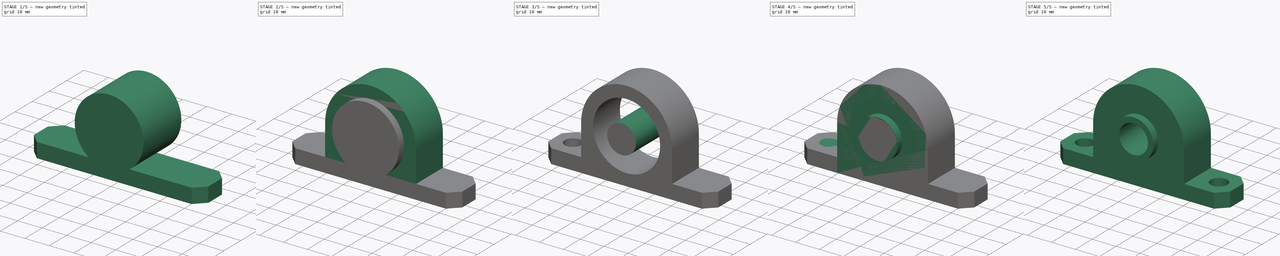
[diagram: build sequence overview — one tinted view per stage of 5, left to right]
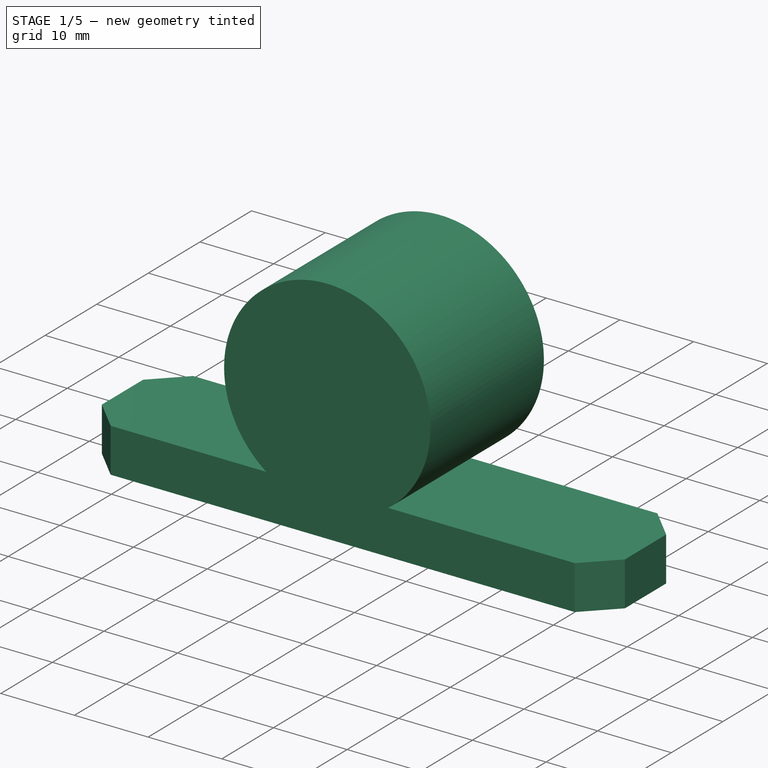
[diagram: stage 1 of 5 — iso view after this stage's code; geometry added in this stage tinted green]
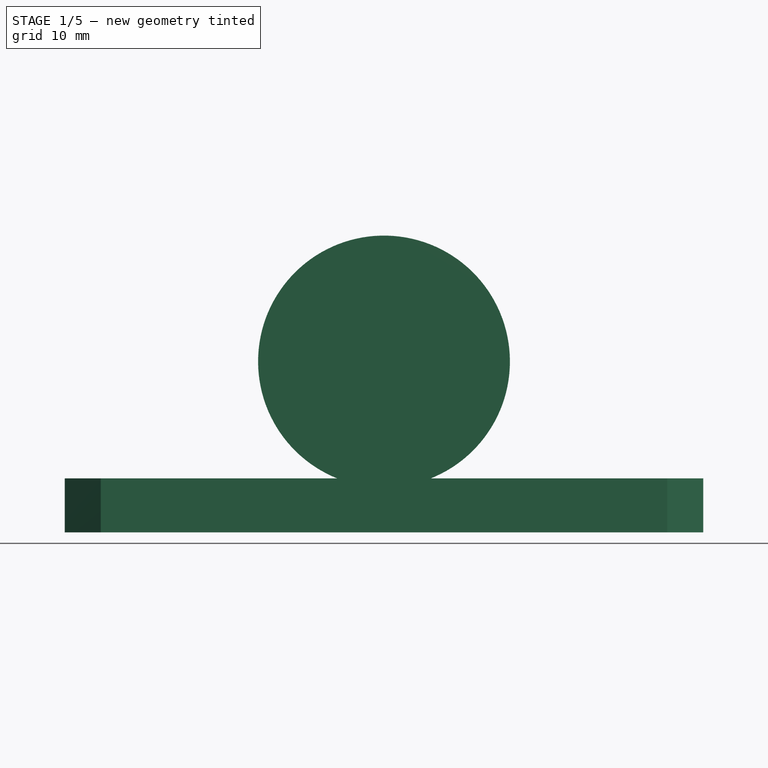
[diagram: stage 1 of 5 — front view after this stage's code; geometry added in this stage tinted green]
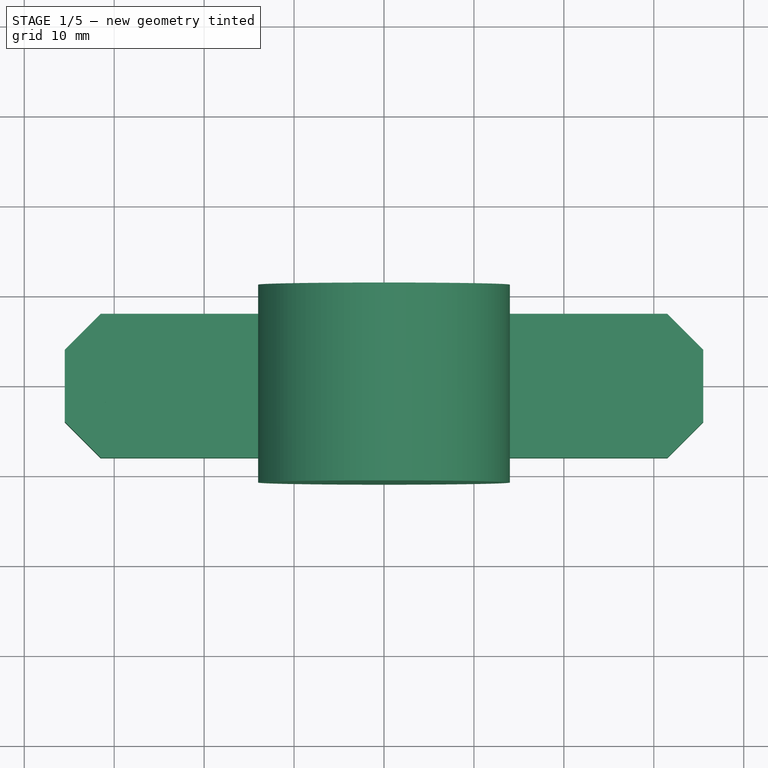
[diagram: stage 1 of 5 — top view after this stage's code; geometry added in this stage tinted green]
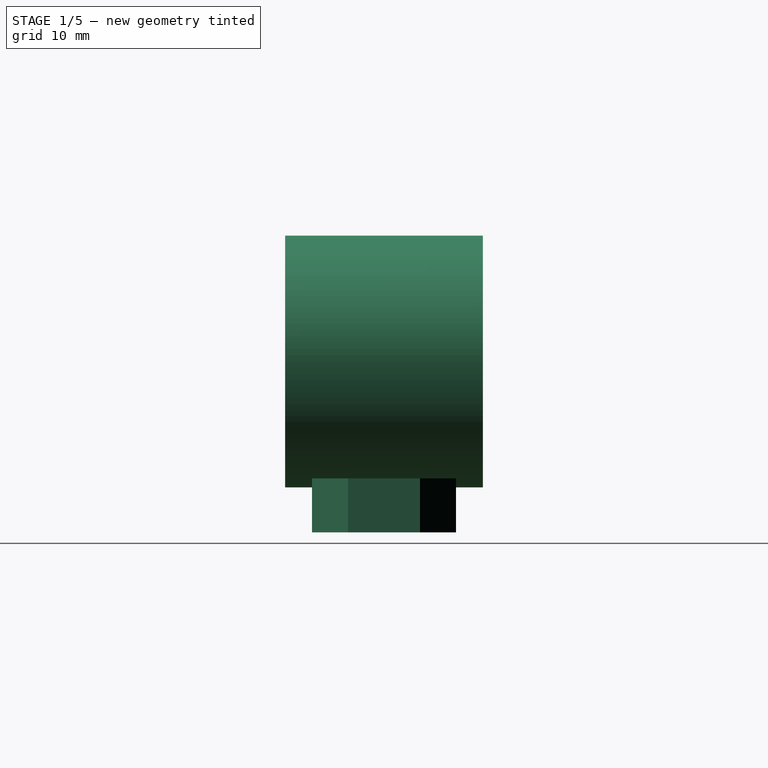
[diagram: stage 1 of 5 — right view after this stage's code; geometry added in this stage tinted green]
FCSTD DOCUMENT  (FreeCAD 1.0R1.0rc2)
Label: FlangeBearing_12mm_KP001
License: All rights reserved
LicenseURL: http://en.wikipedia.org/wiki/All_rights_reserved
objects: Part::Cylinder×10, Part::MultiFuse×6, Sketcher::SketchObject×2, PartDesign::Pad×2, PartDesign::Body×2, Part::Box×2, Part::Cut×2
note: 32 computed .brp shape members not serialized (recipe doc carries the construction recipe); baked Part::Feature solids carry a one-line shape summary decoded from their .brp

FEATURE [Part::Cylinder] Cylinder005
  Angle = 360
  AttacherType = Attacher::AttachEngine3D
  FirstAngle = 0
  Height = 6
  Placement = pos=(-28,0,0) rot=(0,0,1;0rad)
  Radius = 3.5
  SecondAngle = 0
FEATURE [Part::Cylinder] Cylinder006
  Angle = 360
  AttacherType = Attacher::AttachEngine3D
  FirstAngle = 0
  Height = 6
  Placement = pos=(28,0,0) rot=(0,0,1;0rad)
  Radius = 3.5
  SecondAngle = 0
FEATURE [Part::Cylinder] Cylinder008
  Angle = 360
  AttacherType = Attacher::AttachEngine3D
  FirstAngle = 0
  Height = 22
  Placement = pos=(0,11,19) rot=(1,0,0;1.5708rad)
  Radius = 14
  SecondAngle = 0
FEATURE [Sketcher::SketchObject] Sketch001
  ArcFitTolerance = 1e-06
  AttachmentSupport = -> [XY_Plane001]
  FullyConstrained = true
  MakeInternals = false
  MapMode = 5
  sketch-geometry (8):
    g0: LineSegment StartX=-31.5 StartY=-8 StartZ=0 EndX=31.5 EndY=-8 EndZ=0
    g1: LineSegment StartX=31.5 StartY=-8 StartZ=0 EndX=35.5 EndY=-4 EndZ=0
    g2: LineSegment StartX=35.5 StartY=-4 StartZ=0 EndX=35.5 EndY=4 EndZ=0
    g3: LineSegment StartX=35.5 StartY=4 StartZ=0 EndX=31.5 EndY=8 EndZ=0
    g4: LineSegment StartX=31.5 StartY=8 StartZ=0 EndX=-31.5 EndY=8 EndZ=0
    g5: LineSegment StartX=-31.5 StartY=8 StartZ=0 EndX=-35.5 EndY=4 EndZ=0
    g6: LineSegment StartX=-35.5 StartY=4 StartZ=0 EndX=-35.5 EndY=-4 EndZ=0
    g7: LineSegment StartX=-35.5 StartY=-4 StartZ=0 EndX=-31.5 EndY=-8 EndZ=0
  constraints (24):
    c: Horizontal(g0)
    c: Coincident(g0,g1)
    c: Coincident(g1,g2)
    c: Vertical(g2)
    c: Coincident(g2,g3)
    c: Coincident(g3,g4)
    c: Horizontal(g4)
    c: Coincident(g4,g5)
    c: Coincident(g5,g6)
    c: Vertical(g6)
    c: Coincident(g6,g7)
    c: Coincident(g7,g0)
    c: Equal(g0,g4)
    c: Equal(g6,g2)
    c: Equal(g5,g1)
    c: Equal(g7,g3)
    c: DistanceY(g2,g2) = 8
    c: Angle(g6,g5) = 2.35619
    c: Angle(g7,g6) = 2.35619
    c: DistanceX(g5,g2) = 71
    c: DistanceY(g0,g4) = 16
    c: DistanceY(g-1,g4) = 8
    c: DistanceX(g5,g-1) = 35.5
    c: DistanceX(g0,g4) = 0
FEATURE [PartDesign::Pad] Pad001
  Direction = (0,0,1)
  Length = 6
  Length2 = 10
  Profile = -> Sketch001
  ReferenceAxis = -> Sketch001 [N_Axis]
  Suppressed = false
  Type = 0
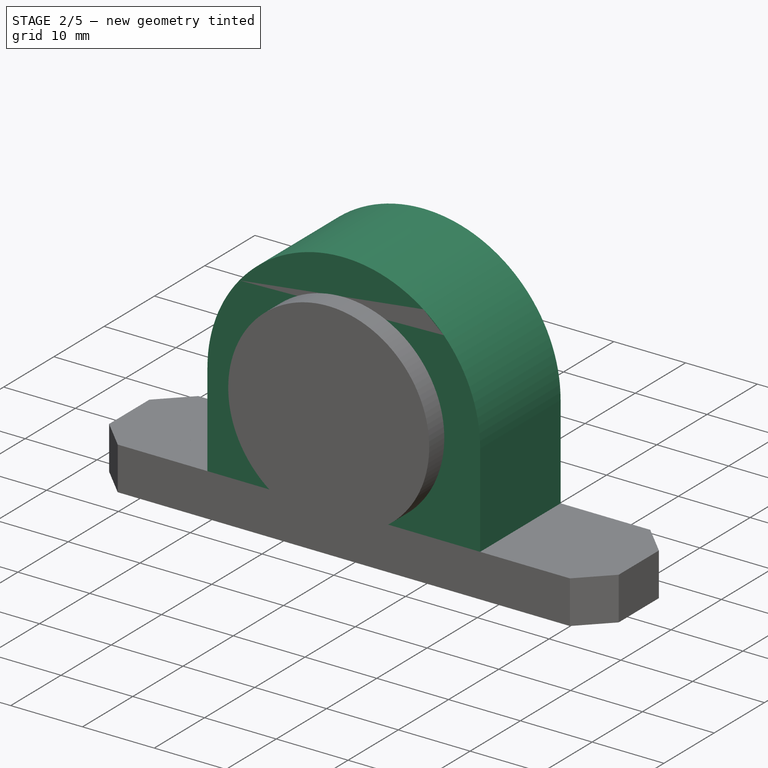
[diagram: stage 2 of 5 — iso view after this stage's code; geometry added in this stage tinted green]
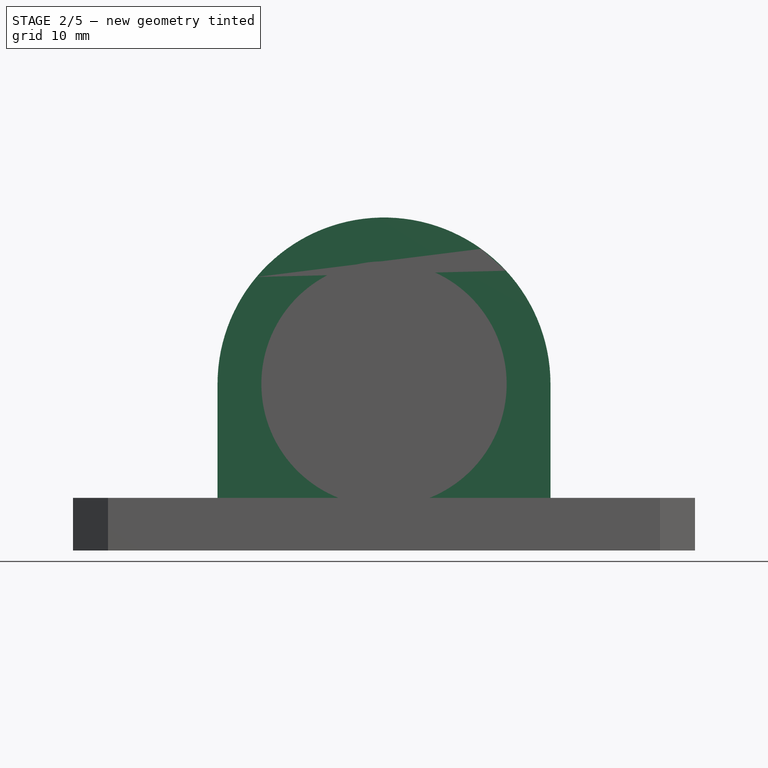
[diagram: stage 2 of 5 — front view after this stage's code; geometry added in this stage tinted green]
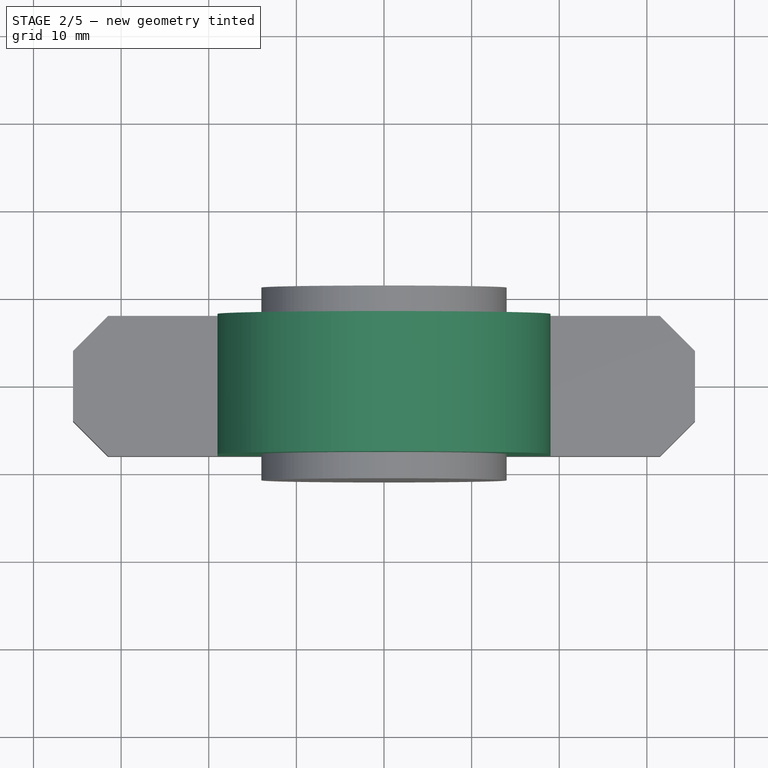
[diagram: stage 2 of 5 — top view after this stage's code; geometry added in this stage tinted green]
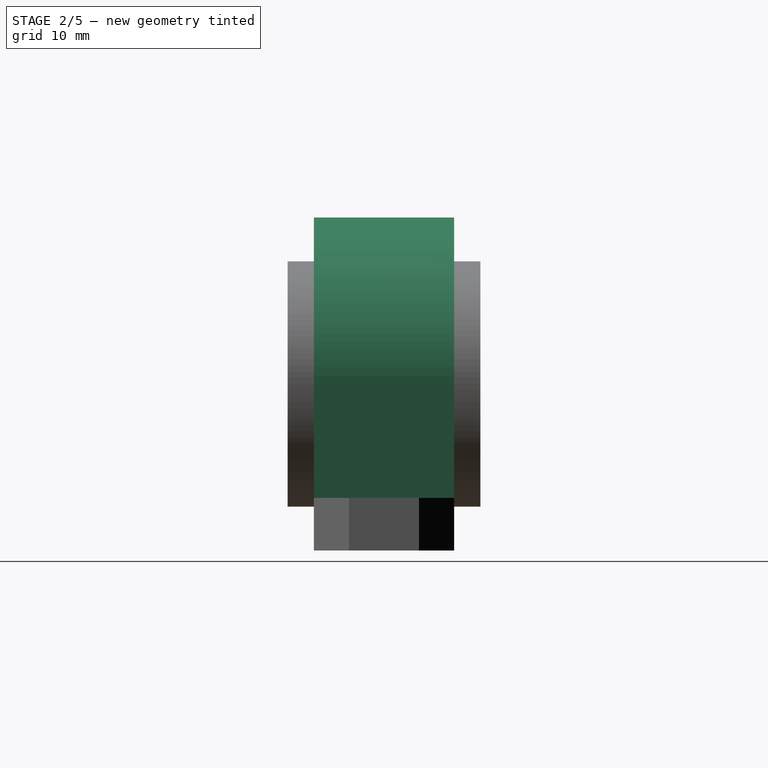
[diagram: stage 2 of 5 — right view after this stage's code; geometry added in this stage tinted green]
FEATURE [Part::Box] Box001  label="Cube001"
  AttacherType = Attacher::AttachEngine3D
  Height = 19
  Length = 38
  Placement = pos=(-19,-8,0) rot=(0,0,1;0rad)
  Width = 16
FEATURE [Part::Cylinder] Cylinder007
  Angle = 360
  AttacherType = Attacher::AttachEngine3D
  FirstAngle = 0
  Height = 16
  Placement = pos=(0,8,19) rot=(1,0,0;1.5708rad)
  Radius = 19
  SecondAngle = 0
FEATURE [Part::Cylinder] Cylinder009
  Angle = 360
  AttacherType = Attacher::AttachEngine3D
  FirstAngle = 0
  Height = 22
  Placement = pos=(0,11,19) rot=(1,0,0;1.5708rad)
  Radius = 8.25
  SecondAngle = 0
FEATURE [Part::MultiFuse] Fusion005
  Shapes = -> [Cylinder005,Cylinder006,Cylinder008]
FEATURE [PartDesign::Body] Body001
  AllowCompound = false
  Group = -> [Sketch001,Pad001]
  Origin = -> Origin001
  Tip = -> Pad001
FEATURE [Part::MultiFuse] Fusion003
  Shapes = -> [Cylinder007,Box001,Body001]
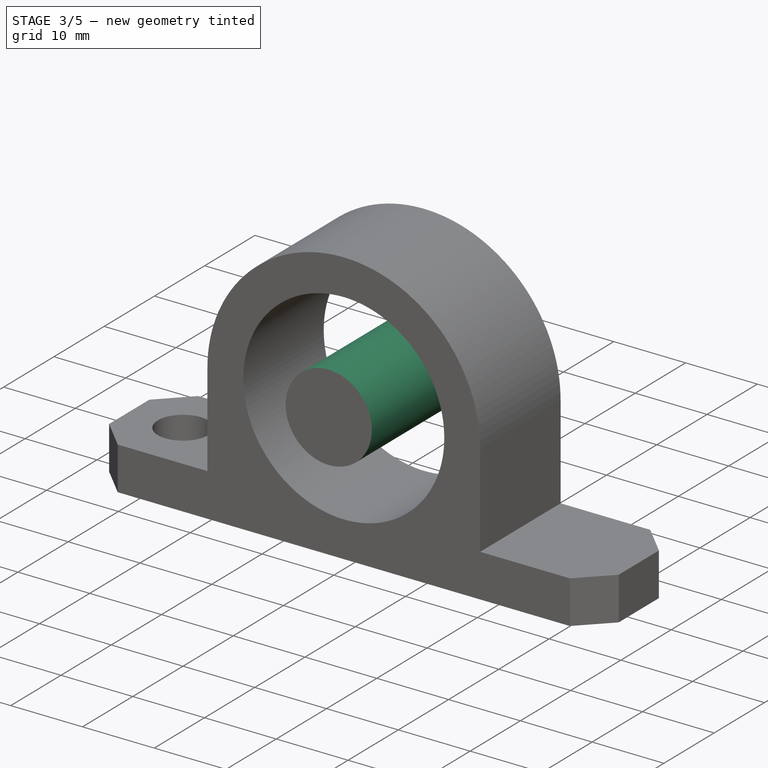
[diagram: stage 3 of 5 — iso view after this stage's code; geometry added in this stage tinted green]
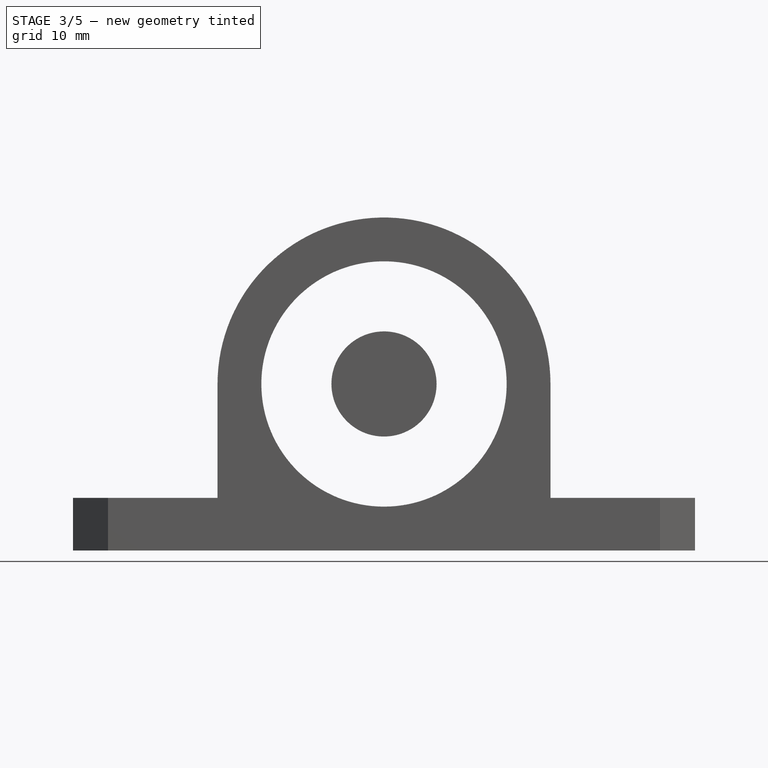
[diagram: stage 3 of 5 — front view after this stage's code; geometry added in this stage tinted green]
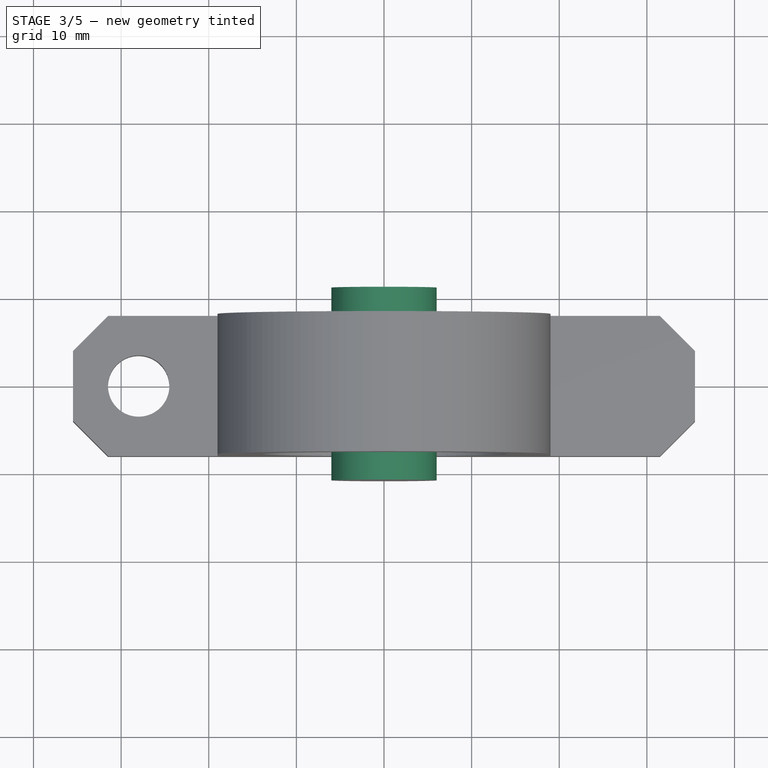
[diagram: stage 3 of 5 — top view after this stage's code; geometry added in this stage tinted green]
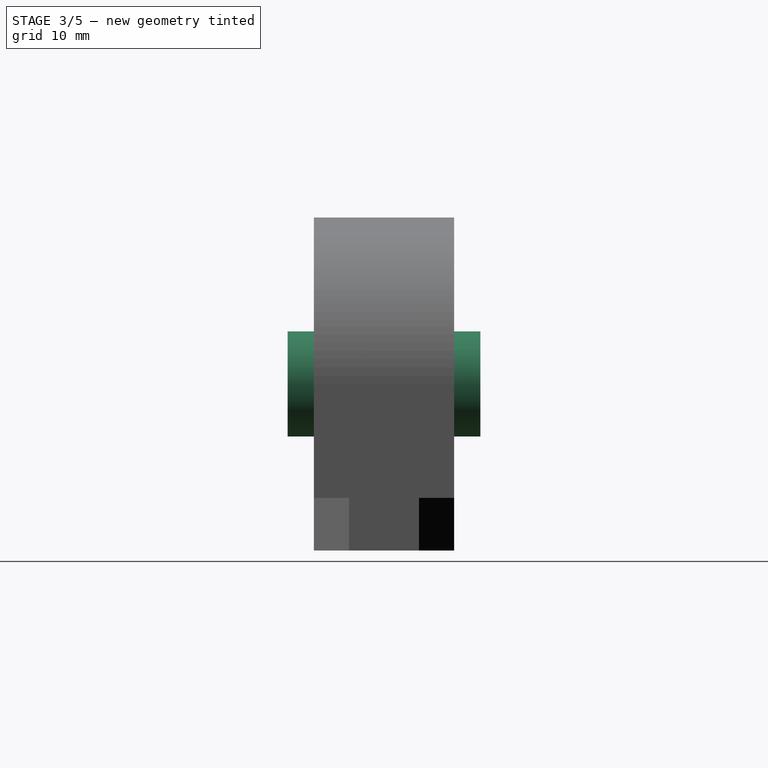
[diagram: stage 3 of 5 — right view after this stage's code; geometry added in this stage tinted green]
FEATURE [Part::Cylinder] Cylinder001
  Angle = 360
  AttacherType = Attacher::AttachEngine3D
  FirstAngle = 0
  Height = 6
  Placement = pos=(28,0,0) rot=(0,0,1;0rad)
  Radius = 3.5
  SecondAngle = 0
FEATURE [Part::Cylinder] Cylinder003
  Angle = 360
  AttacherType = Attacher::AttachEngine3D
  FirstAngle = 0
  Height = 22
  Placement = pos=(0,11,19) rot=(1,0,0;1.5708rad)
  Radius = 6
  SecondAngle = 0
FEATURE [Part::MultiFuse] Fusion004
  Shapes = -> [Cylinder009,Fusion003]
FEATURE [Part::Cut] Cut001  label="FlangeBlock"
  Base = -> Fusion004
  Tool = -> Fusion005
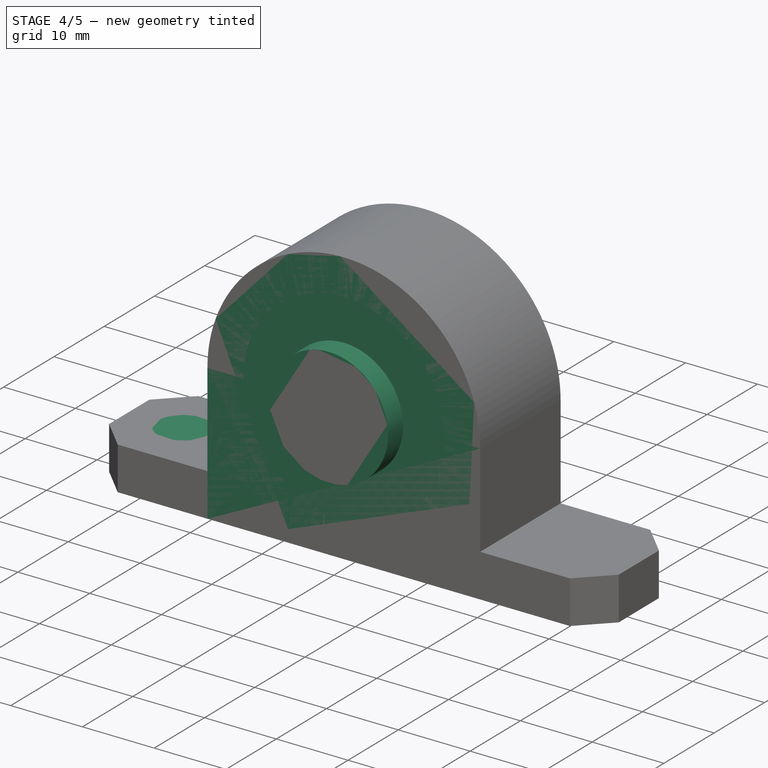
[diagram: stage 4 of 5 — iso view after this stage's code; geometry added in this stage tinted green]
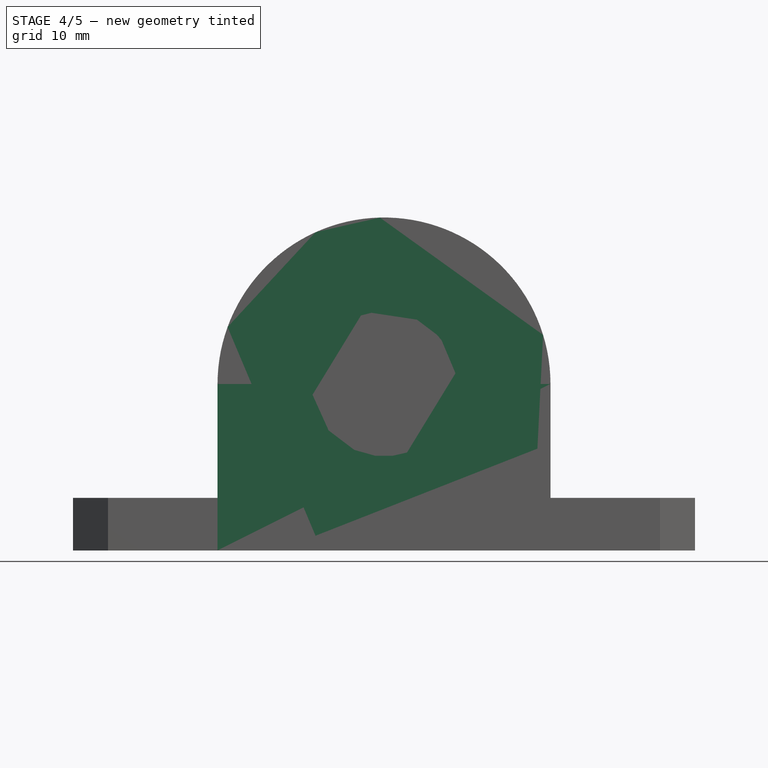
[diagram: stage 4 of 5 — front view after this stage's code; geometry added in this stage tinted green]
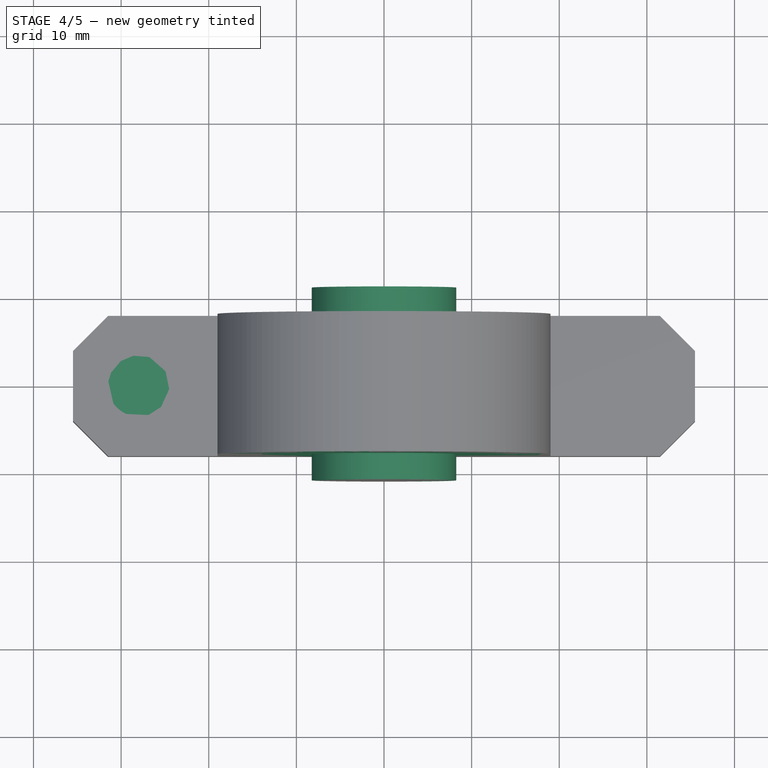
[diagram: stage 4 of 5 — top view after this stage's code; geometry added in this stage tinted green]
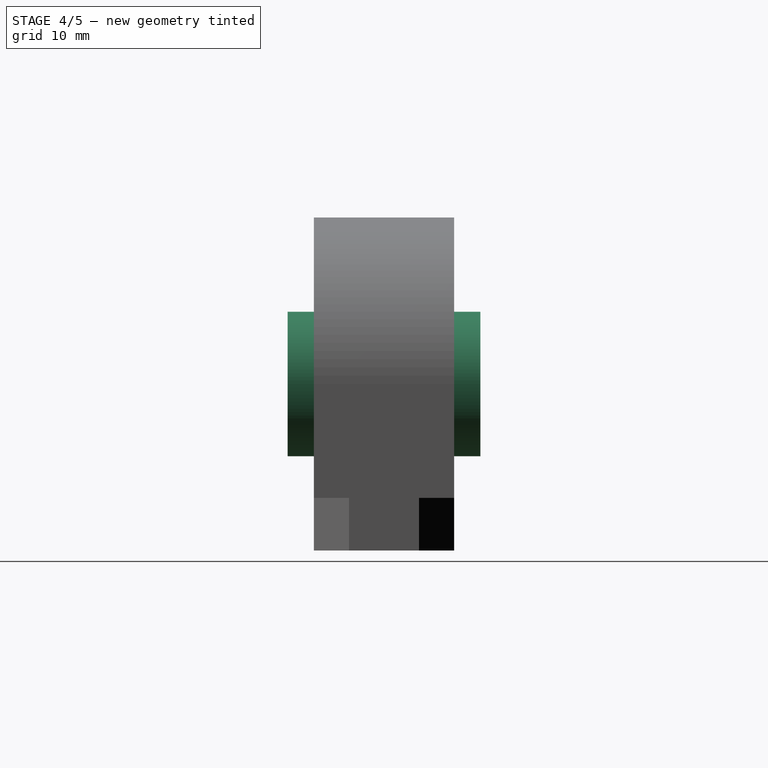
[diagram: stage 4 of 5 — right view after this stage's code; geometry added in this stage tinted green]
FEATURE [PartDesign::Body] Body
  AllowCompound = false
  Group = -> [Sketch,Pad]
  Origin = -> Origin
  Tip = -> Pad
FEATURE [Part::Cylinder] Cylinder
  Angle = 360
  AttacherType = Attacher::AttachEngine3D
  FirstAngle = 0
  Height = 6
  Placement = pos=(-28,0,0) rot=(0,0,1;0rad)
  Radius = 3.5
  SecondAngle = 0
FEATURE [Part::Cylinder] Cylinder002
  Angle = 360
  AttacherType = Attacher::AttachEngine3D
  FirstAngle = 0
  Height = 16
  Placement = pos=(0,8,19) rot=(1,0,0;1.5708rad)
  Radius = 19
  SecondAngle = 0
FEATURE [Part::Box] Box  label="Cube"
  AttacherType = Attacher::AttachEngine3D
  Height = 19
  Length = 38
  Placement = pos=(-19,-8,0) rot=(0,0,1;0rad)
  Width = 16
FEATURE [Part::Cylinder] Cylinder004
  Angle = 360
  AttacherType = Attacher::AttachEngine3D
  FirstAngle = 0
  Height = 22
  Placement = pos=(0,11,19) rot=(1,0,0;1.5708rad)
  Radius = 8.25
  SecondAngle = 0
FEATURE [Part::MultiFuse] Fusion002
  Shapes = -> [Cylinder,Cylinder001,Cylinder003]
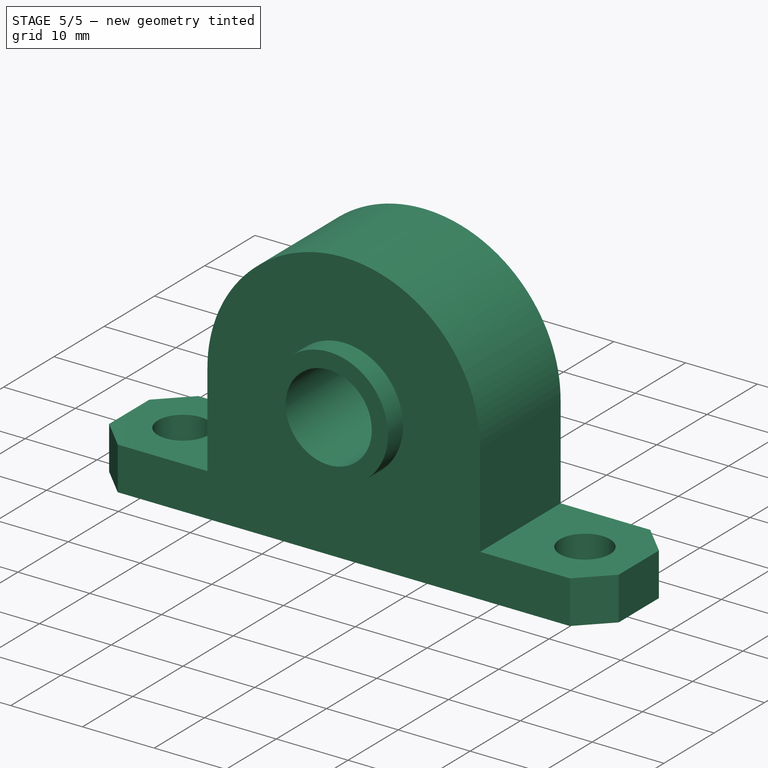
[diagram: stage 5 of 5 — iso view after this stage's code; geometry added in this stage tinted green]
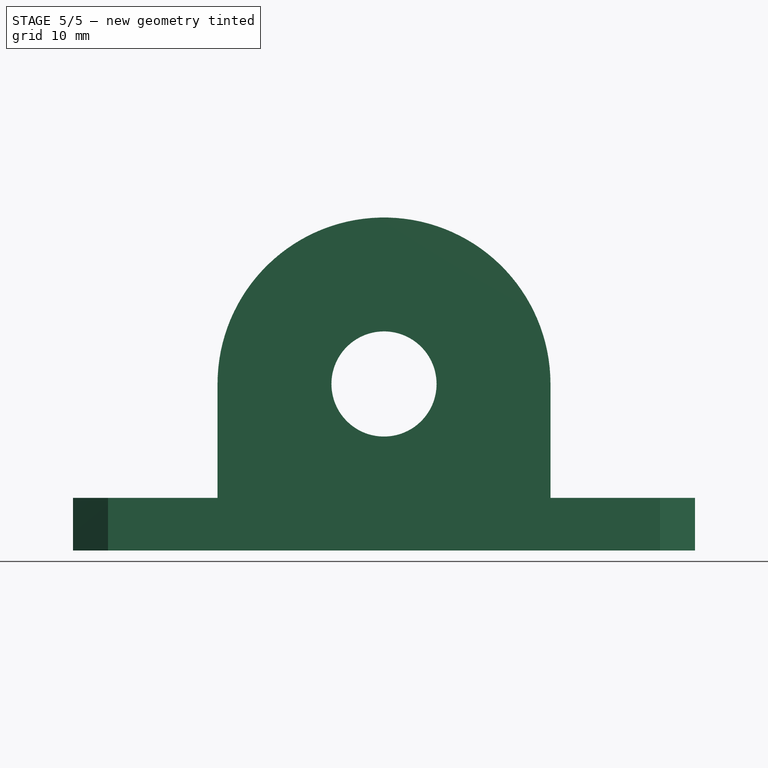
[diagram: stage 5 of 5 — front view after this stage's code; geometry added in this stage tinted green]
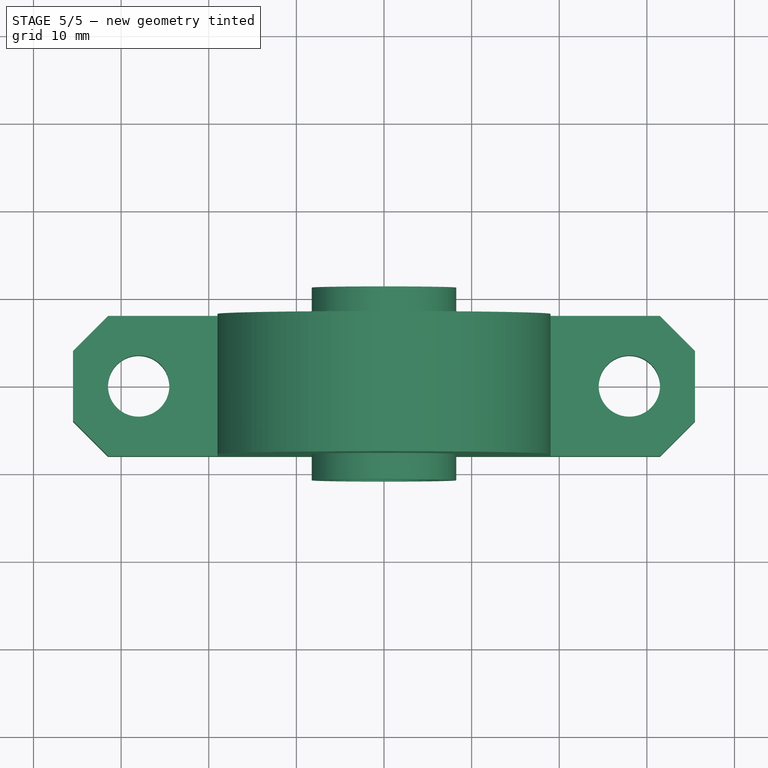
[diagram: stage 5 of 5 — top view after this stage's code; geometry added in this stage tinted green]
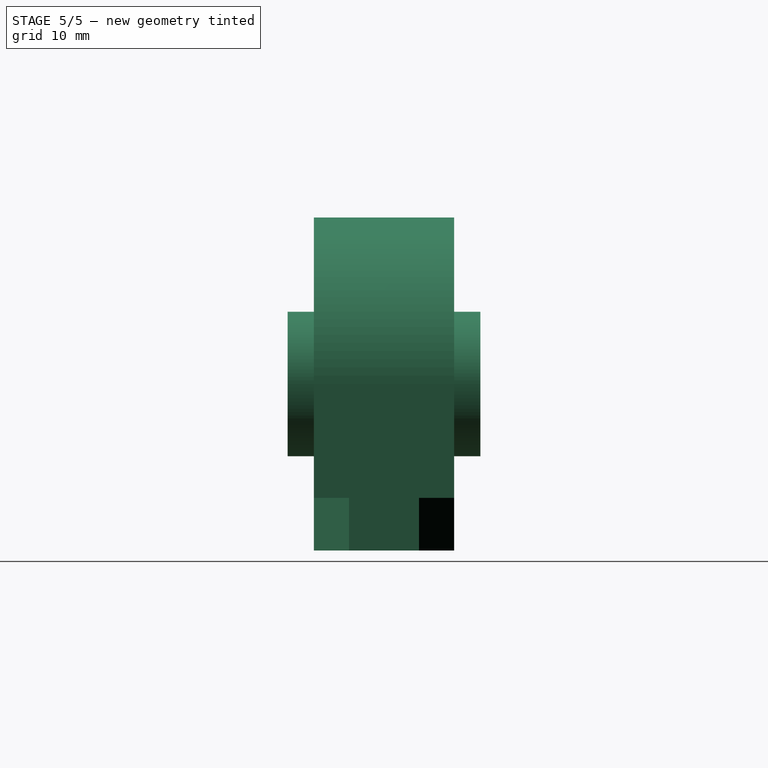
[diagram: stage 5 of 5 — right view after this stage's code; geometry added in this stage tinted green]
FEATURE [Sketcher::SketchObject] Sketch
  ArcFitTolerance = 1e-06
  AttachmentSupport = -> [XY_Plane]
  FullyConstrained = true
  MakeInternals = false
  MapMode = 5
  sketch-geometry (8):
    g0: LineSegment StartX=-31.5 StartY=-8 StartZ=0 EndX=31.5 EndY=-8 EndZ=0
    g1: LineSegment StartX=31.5 StartY=-8 StartZ=0 EndX=35.5 EndY=-4 EndZ=0
    g2: LineSegment StartX=35.5 StartY=-4 StartZ=0 EndX=35.5 EndY=4 EndZ=0
    g3: LineSegment StartX=35.5 StartY=4 StartZ=0 EndX=31.5 EndY=8 EndZ=0
    g4: LineSegment StartX=31.5 StartY=8 StartZ=0 EndX=-31.5 EndY=8 EndZ=0
    g5: LineSegment StartX=-31.5 StartY=8 StartZ=0 EndX=-35.5 EndY=4 EndZ=0
    g6: LineSegment StartX=-35.5 StartY=4 StartZ=0 EndX=-35.5 EndY=-4 EndZ=0
    g7: LineSegment StartX=-35.5 StartY=-4 StartZ=0 EndX=-31.5 EndY=-8 EndZ=0
  constraints (24):
    c: Horizontal(g0)
    c: Coincident(g0,g1)
    c: Coincident(g1,g2)
    c: Vertical(g2)
    c: Coincident(g2,g3)
    c: Coincident(g3,g4)
    c: Horizontal(g4)
    c: Coincident(g4,g5)
    c: Coincident(g5,g6)
    c: Vertical(g6)
    c: Coincident(g6,g7)
    c: Coincident(g7,g0)
    c: Equal(g0,g4)
    c: Equal(g6,g2)
    c: Equal(g5,g1)
    c: Equal(g7,g3)
    c: DistanceY(g2,g2) = 8
    c: Angle(g6,g5) = 2.35619
    c: Angle(g7,g6) = 2.35619
    c: DistanceX(g5,g2) = 71
    c: DistanceY(g0,g4) = 16
    c: DistanceY(g-1,g4) = 8
    c: DistanceX(g5,g-1) = 35.5
    c: DistanceX(g0,g4) = 0
FEATURE [PartDesign::Pad] Pad
  Direction = (0,0,1)
  Length = 6
  Length2 = 10
  Profile = -> Sketch
  ReferenceAxis = -> Sketch [N_Axis]
  Suppressed = false
  Type = 0
FEATURE [Part::MultiFuse] Fusion
  Shapes = -> [Cylinder002,Box,Body]
FEATURE [Part::MultiFuse] Fusion001
  Shapes = -> [Cylinder004,Fusion]
FEATURE [Part::Cut] Cut  label="Template"
  Base = -> Fusion001
  Tool = -> Fusion002
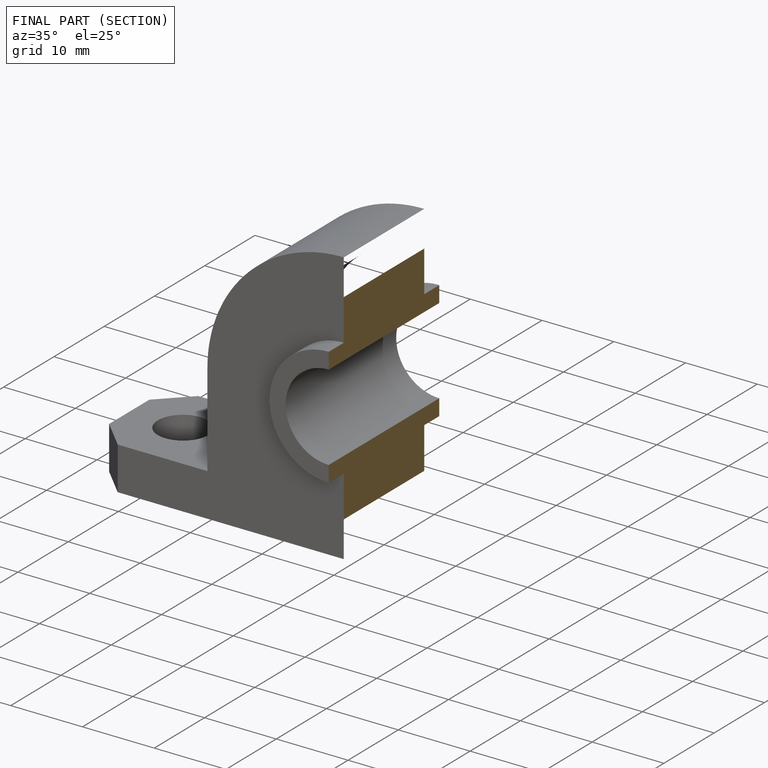
[diagram: finished part — half-section view (interior)]
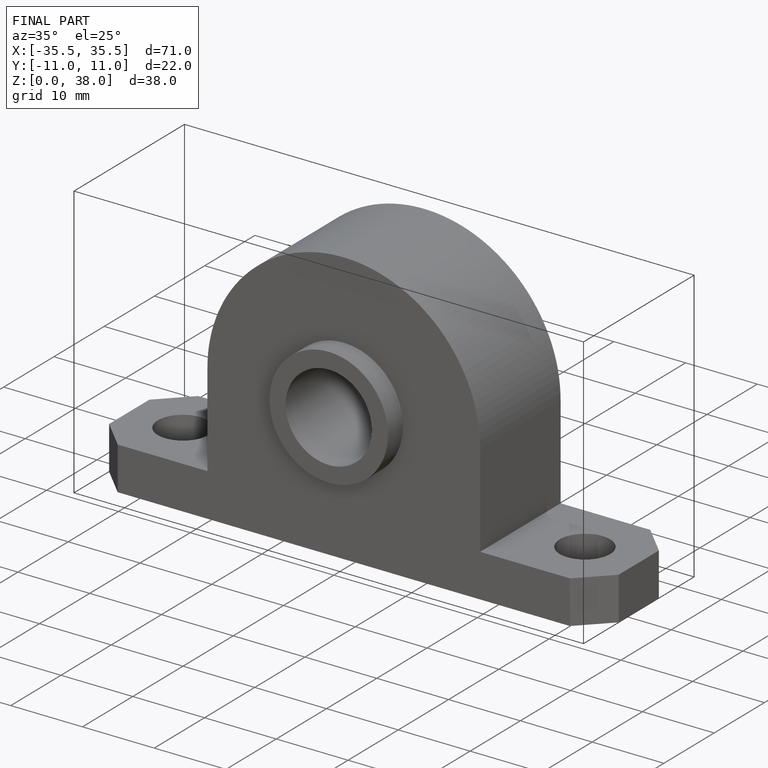
[diagram: finished part — iso view with bounding-box wireframe]
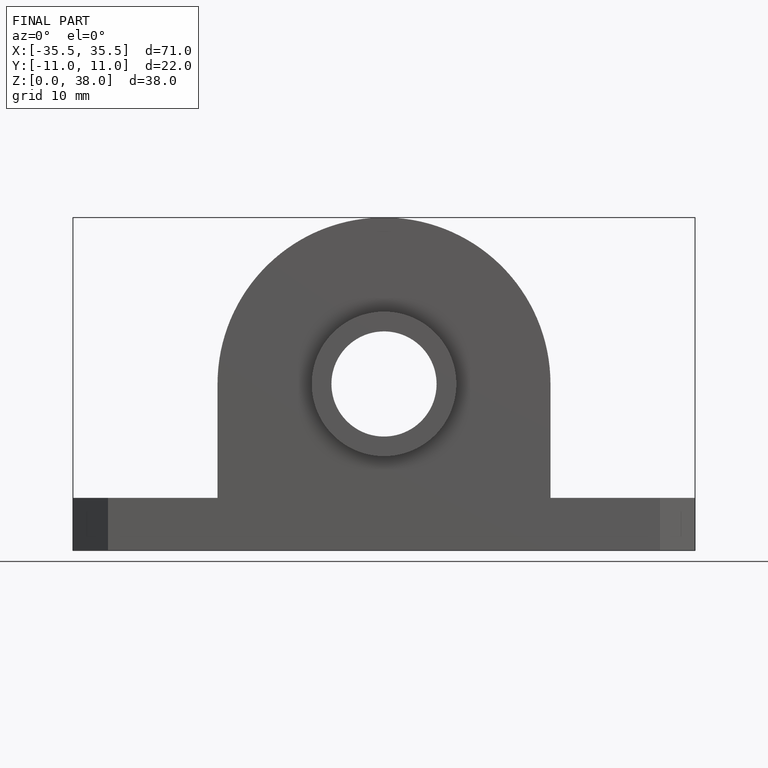
[diagram: finished part — front view with bounding-box wireframe]
